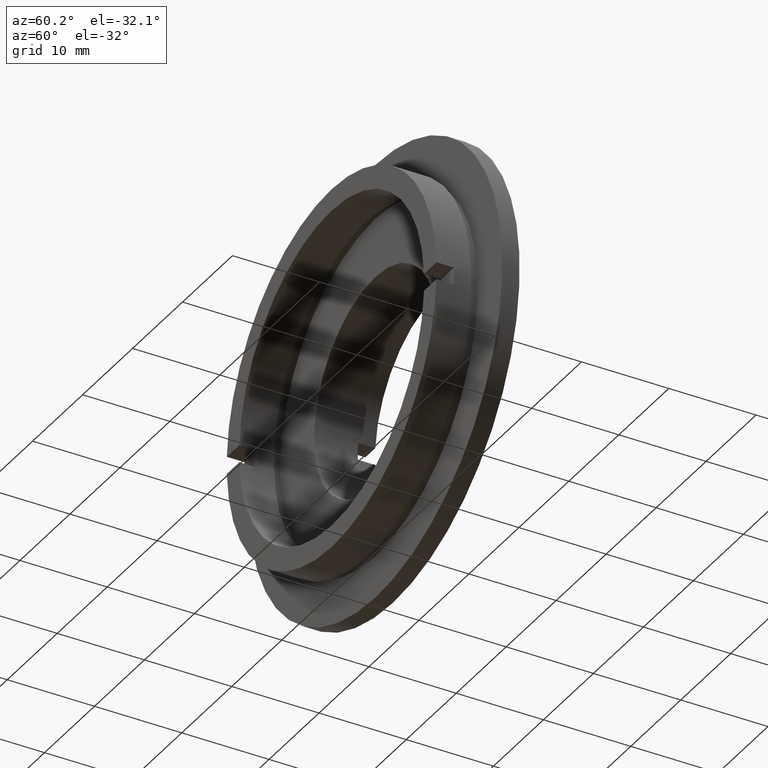
[diagram: clean part render]
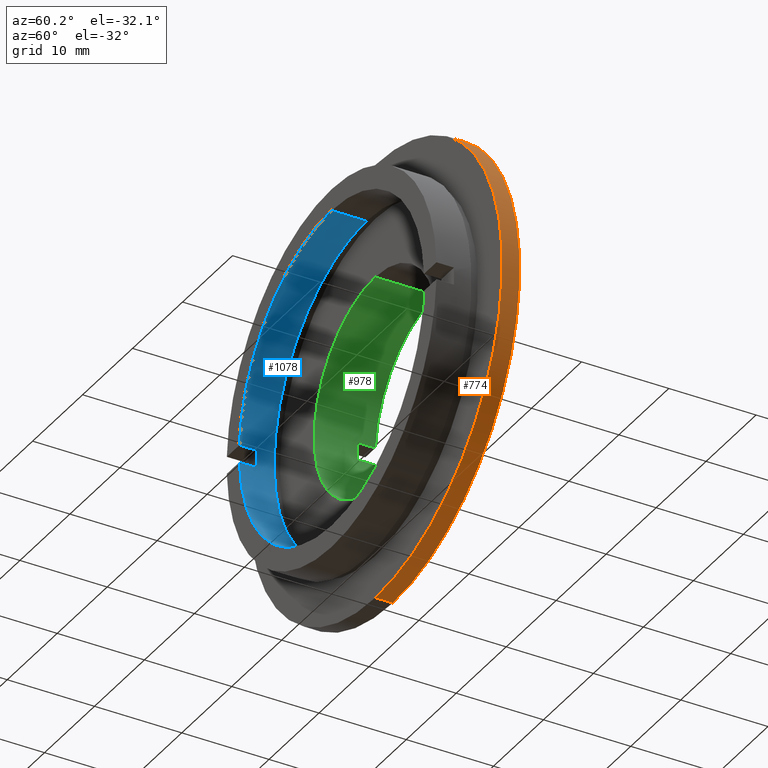
[diagram: same view with three faces highlighted in distinct colors, each labeled with its STEP entity id]
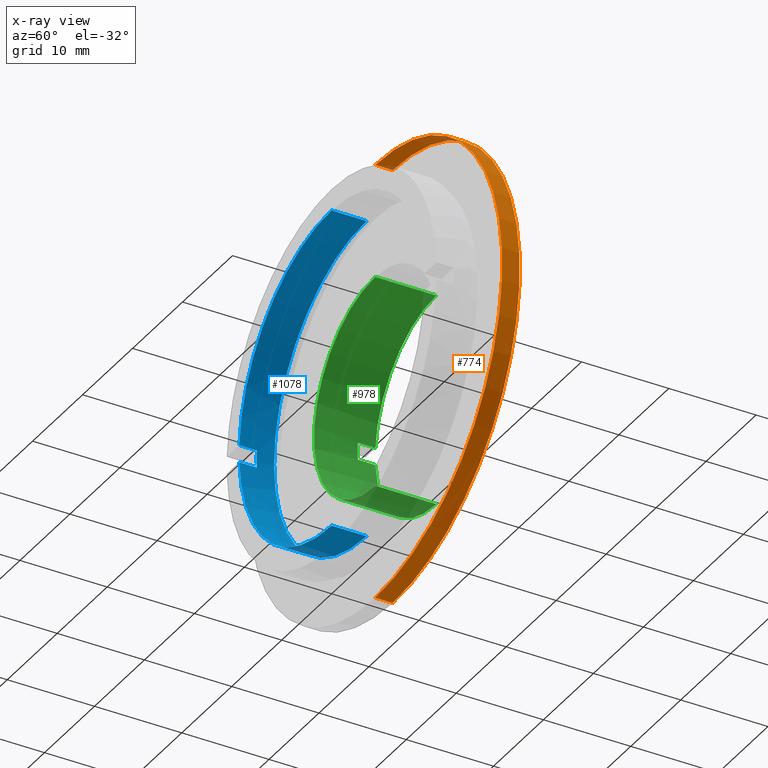
[diagram: x-ray of the same camera — body ghosted, the three highlighted faces saturated]
A machine part, auxiliary view with three faces highlighted in distinct colors.
The next image is the same camera in x-ray (body ghosted, the three faces saturated) — at least one of them is partly hidden behind the body in this view.
Their STEP definitions:

[orange] entity #774 — the highlighted cylindrical surface (partial cylindrical patch) has radius 25.4 mm, axis along (-0, 1, -0).
#33 = CARTESIAN_POINT ( 'NONE',  ( 3.110602869834276500E-015, 6.999999999999999100, -25.39999999999999500 ) ) ;
#59 = DIRECTION ( 'NONE',  ( -0.0000000000000000000, 1.000000000000000000, -0.0000000000000000000 ) ) ;
#72 = CARTESIAN_POINT ( 'NONE',  ( 0.0000000000000000000, 22.67749945107591400, 0.0000000000000000000 ) ) ;
#80 = VERTEX_POINT ( 'NONE', #885 ) ;
#115 = EDGE_LOOP ( 'NONE', ( #354, #1147, #866, #1282 ) ) ;
#341 = CIRCLE ( 'NONE', #729, 25.39999999999999500 ) ;
#349 = EDGE_CURVE ( 'NONE', #80, #836, #1271, .T. ) ;
#354 = ORIENTED_EDGE ( 'NONE', *, *, #1321, .T. ) ;
#373 = CARTESIAN_POINT ( 'NONE',  ( 0.0000000000000000000, 5.000000000000000900, 0.0000000000000000000 ) ) ;
#389 = CARTESIAN_POINT ( 'NONE',  ( 0.0000000000000000000, 5.000000000000000900, 25.39999999999999500 ) ) ;
#436 = CARTESIAN_POINT ( 'NONE',  ( 0.0000000000000000000, 22.67749945107591400, 25.39999999999999500 ) ) ;
#511 = VERTEX_POINT ( 'NONE', #389 ) ;
#571 = DIRECTION ( 'NONE',  ( -0.0000000000000000000, 1.000000000000000000, -0.0000000000000000000 ) ) ;
#588 = VECTOR ( 'NONE', #59, 1000.000000000000000 ) ;
#604 = EDGE_CURVE ( 'NONE', #639, #836, #1247, .T. ) ;
#639 = VERTEX_POINT ( 'NONE', #1163 ) ;
#729 = AXIS2_PLACEMENT_3D ( 'NONE', #373, #880, #1092 ) ;
#741 = FACE_OUTER_BOUND ( 'NONE', #115, .T. ) ;
#752 = CARTESIAN_POINT ( 'NONE',  ( 3.110602869834276500E-015, 22.67749945107591400, -25.39999999999999500 ) ) ;
#768 = CARTESIAN_POINT ( 'NONE',  ( 0.0000000000000000000, 6.999999999999999100, 0.0000000000000000000 ) ) ;
#774 = ADVANCED_FACE ( 'NONE', ( #741 ), #1198, .T. ) ;
#836 = VERTEX_POINT ( 'NONE', #33 ) ;
#866 = ORIENTED_EDGE ( 'NONE', *, *, #604, .F. ) ;
#880 = DIRECTION ( 'NONE',  ( -0.0000000000000000000, 1.000000000000000000, -0.0000000000000000000 ) ) ;
#885 = CARTESIAN_POINT ( 'NONE',  ( 3.110602869834276500E-015, 5.000000000000000900, -25.39999999999999500 ) ) ;
#914 = EDGE_CURVE ( 'NONE', #511, #639, #1122, .T. ) ;
#947 = AXIS2_PLACEMENT_3D ( 'NONE', #768, #1179, #1036 ) ;
#984 = VECTOR ( 'NONE', #1204, 1000.000000000000000 ) ;
#1036 = DIRECTION ( 'NONE',  ( 0.0000000000000000000, 0.0000000000000000000, 1.000000000000000000 ) ) ;
#1092 = DIRECTION ( 'NONE',  ( 0.0000000000000000000, 0.0000000000000000000, 1.000000000000000000 ) ) ;
#1122 = LINE ( 'NONE', #436, #588 ) ;
#1127 = AXIS2_PLACEMENT_3D ( 'NONE', #72, #571, #1311 ) ;
#1147 = ORIENTED_EDGE ( 'NONE', *, *, #349, .T. ) ;
#1163 = CARTESIAN_POINT ( 'NONE',  ( 0.0000000000000000000, 6.999999999999999100, 25.39999999999999500 ) ) ;
#1179 = DIRECTION ( 'NONE',  ( -0.0000000000000000000, 1.000000000000000000, -0.0000000000000000000 ) ) ;
#1198 = CYLINDRICAL_SURFACE ( 'NONE', #1127, 25.39999999999999500 ) ;
#1204 = DIRECTION ( 'NONE',  ( -0.0000000000000000000, 1.000000000000000000, -0.0000000000000000000 ) ) ;
#1247 = CIRCLE ( 'NONE', #947, 25.39999999999999500 ) ;
#1271 = LINE ( 'NONE', #752, #984 ) ;
#1282 = ORIENTED_EDGE ( 'NONE', *, *, #914, .F. ) ;
#1311 = DIRECTION ( 'NONE',  ( 0.0000000000000000000, 0.0000000000000000000, 1.000000000000000000 ) ) ;
#1321 = EDGE_CURVE ( 'NONE', #511, #80, #341, .T. ) ;

[blue] entity #1078 — the highlighted cylindrical surface (partial cylindrical patch) has radius 18.5 mm, axis along (-0, 1, -0).
#1 = DIRECTION ( 'NONE',  ( -0.0000000000000000000, 1.000000000000000000, -0.0000000000000000000 ) ) ;
#4 = DIRECTION ( 'NONE',  ( 0.0000000000000000000, 0.0000000000000000000, 1.000000000000000000 ) ) ;
#40 = AXIS2_PLACEMENT_3D ( 'NONE', #1236, #685, #4 ) ;
#88 = CIRCLE ( 'NONE', #1313, 18.49999999999999600 ) ;
#91 = CARTESIAN_POINT ( 'NONE',  ( -18.47295320191116000, 1.999999999999998200, 1.000000000000000200 ) ) ;
#98 = VECTOR ( 'NONE', #842, 1000.000000000000000 ) ;
#133 = ORIENTED_EDGE ( 'NONE', *, *, #300, .F. ) ;
#137 = CARTESIAN_POINT ( 'NONE',  ( 0.0000000000000000000, 22.67749945107591400, 0.0000000000000000000 ) ) ;
#151 = AXIS2_PLACEMENT_3D ( 'NONE', #137, #894, #248 ) ;
#171 = CARTESIAN_POINT ( 'NONE',  ( -18.47295320191115700, 2.000000000000000000, -0.9999999999999995600 ) ) ;
#240 = EDGE_CURVE ( 'NONE', #449, #440, #268, .T. ) ;
#248 = DIRECTION ( 'NONE',  ( 0.0000000000000000000, 0.0000000000000000000, 1.000000000000000000 ) ) ;
#268 = CIRCLE ( 'NONE', #295, 18.49999999999999600 ) ;
#295 = AXIS2_PLACEMENT_3D ( 'NONE', #615, #1, #524 ) ;
#300 = EDGE_CURVE ( 'NONE', #565, #464, #1098, .T. ) ;
#312 = VECTOR ( 'NONE', #498, 1000.000000000000000 ) ;
#322 = VERTEX_POINT ( 'NONE', #171 ) ;
#329 = CARTESIAN_POINT ( 'NONE',  ( 2.265596578422603000E-015, 0.0000000000000000000, -18.49999999999999600 ) ) ;
#333 = LINE ( 'NONE', #721, #502 ) ;
#335 = DIRECTION ( 'NONE',  ( 0.0000000000000000000, -1.000000000000000000, 0.0000000000000000000 ) ) ;
#363 = CARTESIAN_POINT ( 'NONE',  ( 0.0000000000000000000, 22.67749945107591400, 18.49999999999999600 ) ) ;
#440 = VERTEX_POINT ( 'NONE', #578 ) ;
#446 = VERTEX_POINT ( 'NONE', #1132 ) ;
#447 = DIRECTION ( 'NONE',  ( -0.0000000000000000000, 1.000000000000000000, -0.0000000000000000000 ) ) ;
#449 = VERTEX_POINT ( 'NONE', #329 ) ;
#464 = VERTEX_POINT ( 'NONE', #860 ) ;
#493 = EDGE_CURVE ( 'NONE', #322, #565, #88, .T. ) ;
#498 = DIRECTION ( 'NONE',  ( -0.0000000000000000000, 1.000000000000000000, -0.0000000000000000000 ) ) ;
#502 = VECTOR ( 'NONE', #535, 1000.000000000000000 ) ;
#524 = DIRECTION ( 'NONE',  ( 0.0000000000000000000, 0.0000000000000000000, 1.000000000000000000 ) ) ;
#535 = DIRECTION ( 'NONE',  ( -0.0000000000000000000, 1.000000000000000000, -0.0000000000000000000 ) ) ;
#550 = VECTOR ( 'NONE', #335, 1000.000000000000000 ) ;
#565 = VERTEX_POINT ( 'NONE', #91 ) ;
#578 = CARTESIAN_POINT ( 'NONE',  ( -18.47295320191116000, 0.0000000000000000000, -0.9999999999999945600 ) ) ;
#615 = CARTESIAN_POINT ( 'NONE',  ( 0.0000000000000000000, 0.0000000000000000000, 0.0000000000000000000 ) ) ;
#632 = EDGE_CURVE ( 'NONE', #449, #1284, #854, .T. ) ;
#651 = ORIENTED_EDGE ( 'NONE', *, *, #240, .F. ) ;
#655 = FACE_OUTER_BOUND ( 'NONE', #1100, .T. ) ;
#672 = CARTESIAN_POINT ( 'NONE',  ( 0.0000000000000000000, 4.000000000000000000, 0.0000000000000000000 ) ) ;
#685 = DIRECTION ( 'NONE',  ( -0.0000000000000000000, 1.000000000000000000, -0.0000000000000000000 ) ) ;
#719 = VERTEX_POINT ( 'NONE', #991 ) ;
#721 = CARTESIAN_POINT ( 'NONE',  ( -18.47295320191115700, 22.67749945107591400, -0.9999999999999943400 ) ) ;
#747 = EDGE_CURVE ( 'NONE', #440, #322, #333, .T. ) ;
#750 = CARTESIAN_POINT ( 'NONE',  ( 2.265596578422603000E-015, 4.000000000000000000, -18.49999999999999600 ) ) ;
#758 = CYLINDRICAL_SURFACE ( 'NONE', #151, 18.49999999999999600 ) ;
#781 = ORIENTED_EDGE ( 'NONE', *, *, #1186, .F. ) ;
#790 = ORIENTED_EDGE ( 'NONE', *, *, #861, .T. ) ;
#791 = ORIENTED_EDGE ( 'NONE', *, *, #493, .F. ) ;
#800 = DIRECTION ( 'NONE',  ( 0.0000000000000000000, 0.0000000000000000000, 1.000000000000000000 ) ) ;
#840 = DIRECTION ( 'NONE',  ( 0.0000000000000000000, 1.000000000000000000, 0.0000000000000000000 ) ) ;
#842 = DIRECTION ( 'NONE',  ( -0.0000000000000000000, 1.000000000000000000, -0.0000000000000000000 ) ) ;
#854 = LINE ( 'NONE', #985, #312 ) ;
#860 = CARTESIAN_POINT ( 'NONE',  ( -18.47295320191116000, 0.0000000000000000000, 1.000000000000003800 ) ) ;
#861 = EDGE_CURVE ( 'NONE', #1284, #719, #1233, .T. ) ;
#894 = DIRECTION ( 'NONE',  ( -0.0000000000000000000, 1.000000000000000000, -0.0000000000000000000 ) ) ;
#906 = LINE ( 'NONE', #363, #98 ) ;
#937 = DIRECTION ( 'NONE',  ( 0.0000000000000000000, 0.0000000000000000000, 1.000000000000000000 ) ) ;
#948 = AXIS2_PLACEMENT_3D ( 'NONE', #672, #447, #937 ) ;
#955 = ORIENTED_EDGE ( 'NONE', *, *, #1288, .F. ) ;
#985 = CARTESIAN_POINT ( 'NONE',  ( 2.265596578422603000E-015, 22.67749945107591400, -18.49999999999999600 ) ) ;
#991 = CARTESIAN_POINT ( 'NONE',  ( 0.0000000000000000000, 4.000000000000000000, 18.49999999999999600 ) ) ;
#1078 = ADVANCED_FACE ( 'NONE', ( #655 ), #758, .F. ) ;
#1098 = LINE ( 'NONE', #1216, #550 ) ;
#1100 = EDGE_LOOP ( 'NONE', ( #651, #1192, #790, #955, #781, #133, #791, #1142 ) ) ;
#1132 = CARTESIAN_POINT ( 'NONE',  ( 0.0000000000000000000, 0.0000000000000000000, 18.49999999999999600 ) ) ;
#1142 = ORIENTED_EDGE ( 'NONE', *, *, #747, .F. ) ;
#1170 = CIRCLE ( 'NONE', #40, 18.49999999999999600 ) ;
#1186 = EDGE_CURVE ( 'NONE', #464, #446, #1170, .T. ) ;
#1192 = ORIENTED_EDGE ( 'NONE', *, *, #632, .T. ) ;
#1199 = CARTESIAN_POINT ( 'NONE',  ( 0.0000000000000000000, 1.999999999999998200, 0.0000000000000000000 ) ) ;
#1216 = CARTESIAN_POINT ( 'NONE',  ( -18.47295320191116000, 22.67749945107591400, 1.000000000000003800 ) ) ;
#1233 = CIRCLE ( 'NONE', #948, 18.49999999999999600 ) ;
#1236 = CARTESIAN_POINT ( 'NONE',  ( 0.0000000000000000000, 0.0000000000000000000, 0.0000000000000000000 ) ) ;
#1284 = VERTEX_POINT ( 'NONE', #750 ) ;
#1288 = EDGE_CURVE ( 'NONE', #446, #719, #906, .T. ) ;
#1313 = AXIS2_PLACEMENT_3D ( 'NONE', #1199, #840, #800 ) ;

[green] entity #978 — the highlighted cylindrical surface (partial cylindrical patch) has radius 12.25 mm, axis along (-0, 1, -0).
#3 = DIRECTION ( 'NONE',  ( 0.0000000000000000000, 0.0000000000000000000, 1.000000000000000000 ) ) ;
#15 = VERTEX_POINT ( 'NONE', #872 ) ;
#26 = DIRECTION ( 'NONE',  ( -0.0000000000000000000, -1.000000000000000000, -0.0000000000000000000 ) ) ;
#51 = VECTOR ( 'NONE', #396, 1000.000000000000000 ) ;
#58 = LINE ( 'NONE', #1324, #699 ) ;
#70 = AXIS2_PLACEMENT_3D ( 'NONE', #399, #382, #977 ) ;
#109 = CARTESIAN_POINT ( 'NONE',  ( -12.20911544707478100, 10.00000000000000000, -0.9999999999999974500 ) ) ;
#129 = LINE ( 'NONE', #1112, #1207 ) ;
#141 = AXIS2_PLACEMENT_3D ( 'NONE', #1140, #829, #1124 ) ;
#184 = VERTEX_POINT ( 'NONE', #746 ) ;
#200 = VERTEX_POINT ( 'NONE', #278 ) ;
#202 = EDGE_CURVE ( 'NONE', #748, #1304, #1081, .T. ) ;
#224 = EDGE_CURVE ( 'NONE', #200, #1009, #1125, .T. ) ;
#278 = CARTESIAN_POINT ( 'NONE',  ( -12.20911544707477800, 12.00000000000000000, 1.000000000000001600 ) ) ;
#285 = CARTESIAN_POINT ( 'NONE',  ( 0.0000000000000000000, 12.00000000000000000, 12.24999999999999800 ) ) ;
#289 = ORIENTED_EDGE ( 'NONE', *, *, #484, .F. ) ;
#369 = CARTESIAN_POINT ( 'NONE',  ( 0.0000000000000000000, 10.00000000000000000, 0.0000000000000000000 ) ) ;
#378 = EDGE_LOOP ( 'NONE', ( #697, #540, #686, #289, #1010, #1114, #383, #1287 ) ) ;
#382 = DIRECTION ( 'NONE',  ( -0.0000000000000000000, 1.000000000000000000, -0.0000000000000000000 ) ) ;
#383 = ORIENTED_EDGE ( 'NONE', *, *, #224, .T. ) ;
#396 = DIRECTION ( 'NONE',  ( -0.0000000000000000000, 1.000000000000000000, -0.0000000000000000000 ) ) ;
#399 = CARTESIAN_POINT ( 'NONE',  ( 0.0000000000000000000, 12.00000000000000000, 0.0000000000000000000 ) ) ;
#423 = EDGE_CURVE ( 'NONE', #184, #1009, #562, .T. ) ;
#427 = VERTEX_POINT ( 'NONE', #109 ) ;
#433 = DIRECTION ( 'NONE',  ( -0.0000000000000000000, 1.000000000000000000, -0.0000000000000000000 ) ) ;
#465 = CARTESIAN_POINT ( 'NONE',  ( -12.20911544707477800, 12.00000000000000000, -0.9999999999999978900 ) ) ;
#484 = EDGE_CURVE ( 'NONE', #427, #1304, #859, .T. ) ;
#518 = DIRECTION ( 'NONE',  ( -0.0000000000000000000, 1.000000000000000000, -0.0000000000000000000 ) ) ;
#540 = ORIENTED_EDGE ( 'NONE', *, *, #1137, .T. ) ;
#562 = LINE ( 'NONE', #627, #968 ) ;
#625 = DIRECTION ( 'NONE',  ( 0.0000000000000000000, 0.0000000000000000000, -1.000000000000000000 ) ) ;
#627 = CARTESIAN_POINT ( 'NONE',  ( 0.0000000000000000000, 22.67749945107591400, 12.25000000000000000 ) ) ;
#647 = AXIS2_PLACEMENT_3D ( 'NONE', #649, #736, #754 ) ;
#649 = CARTESIAN_POINT ( 'NONE',  ( 0.0000000000000000000, 22.67749945107591400, 0.0000000000000000000 ) ) ;
#686 = ORIENTED_EDGE ( 'NONE', *, *, #202, .T. ) ;
#697 = ORIENTED_EDGE ( 'NONE', *, *, #1166, .F. ) ;
#699 = VECTOR ( 'NONE', #828, 1000.000000000000000 ) ;
#736 = DIRECTION ( 'NONE',  ( -0.0000000000000000000, 1.000000000000000000, -0.0000000000000000000 ) ) ;
#746 = CARTESIAN_POINT ( 'NONE',  ( 0.0000000000000000000, 5.000000000000000900, 12.25000000000000000 ) ) ;
#748 = VERTEX_POINT ( 'NONE', #1335 ) ;
#754 = DIRECTION ( 'NONE',  ( 0.0000000000000000000, 0.0000000000000000000, 1.000000000000000000 ) ) ;
#784 = EDGE_CURVE ( 'NONE', #15, #427, #1094, .T. ) ;
#804 = CIRCLE ( 'NONE', #1157, 12.25000000000000000 ) ;
#807 = CARTESIAN_POINT ( 'NONE',  ( 0.0000000000000000000, 5.000000000000000900, 0.0000000000000000000 ) ) ;
#819 = CARTESIAN_POINT ( 'NONE',  ( 1.500192328955507700E-015, 5.000000000000000900, -12.25000000000000000 ) ) ;
#828 = DIRECTION ( 'NONE',  ( 0.0000000000000000000, -1.000000000000000000, 0.0000000000000000000 ) ) ;
#829 = DIRECTION ( 'NONE',  ( -0.0000000000000000000, 1.000000000000000000, -0.0000000000000000000 ) ) ;
#859 = LINE ( 'NONE', #990, #51 ) ;
#872 = CARTESIAN_POINT ( 'NONE',  ( -12.20911544707478100, 10.00000000000000000, 1.000000000000001300 ) ) ;
#904 = VERTEX_POINT ( 'NONE', #819 ) ;
#968 = VECTOR ( 'NONE', #433, 1000.000000000000000 ) ;
#977 = DIRECTION ( 'NONE',  ( 0.0000000000000000000, 0.0000000000000000000, 1.000000000000000000 ) ) ;
#978 = ADVANCED_FACE ( 'NONE', ( #1047 ), #1165, .F. ) ;
#990 = CARTESIAN_POINT ( 'NONE',  ( -12.20911544707478000, 22.67749945107591400, -1.000000000000000000 ) ) ;
#1009 = VERTEX_POINT ( 'NONE', #285 ) ;
#1010 = ORIENTED_EDGE ( 'NONE', *, *, #784, .F. ) ;
#1047 = FACE_OUTER_BOUND ( 'NONE', #378, .T. ) ;
#1061 = AXIS2_PLACEMENT_3D ( 'NONE', #369, #26, #625 ) ;
#1081 = CIRCLE ( 'NONE', #70, 12.24999999999999800 ) ;
#1094 = CIRCLE ( 'NONE', #1061, 12.25000000000000000 ) ;
#1112 = CARTESIAN_POINT ( 'NONE',  ( 1.500192328955507700E-015, 22.67749945107591400, -12.25000000000000000 ) ) ;
#1114 = ORIENTED_EDGE ( 'NONE', *, *, #1123, .F. ) ;
#1123 = EDGE_CURVE ( 'NONE', #200, #15, #58, .T. ) ;
#1124 = DIRECTION ( 'NONE',  ( 0.0000000000000000000, 0.0000000000000000000, 1.000000000000000000 ) ) ;
#1125 = CIRCLE ( 'NONE', #141, 12.24999999999999800 ) ;
#1137 = EDGE_CURVE ( 'NONE', #904, #748, #129, .T. ) ;
#1140 = CARTESIAN_POINT ( 'NONE',  ( 0.0000000000000000000, 12.00000000000000000, 0.0000000000000000000 ) ) ;
#1157 = AXIS2_PLACEMENT_3D ( 'NONE', #807, #518, #3 ) ;
#1165 = CYLINDRICAL_SURFACE ( 'NONE', #647, 12.25000000000000000 ) ;
#1166 = EDGE_CURVE ( 'NONE', #904, #184, #804, .T. ) ;
#1174 = DIRECTION ( 'NONE',  ( -0.0000000000000000000, 1.000000000000000000, -0.0000000000000000000 ) ) ;
#1207 = VECTOR ( 'NONE', #1174, 1000.000000000000000 ) ;
#1287 = ORIENTED_EDGE ( 'NONE', *, *, #423, .F. ) ;
#1304 = VERTEX_POINT ( 'NONE', #465 ) ;
#1324 = CARTESIAN_POINT ( 'NONE',  ( -12.20911544707478100, 22.67749945107591400, 1.000000000000002900 ) ) ;
#1335 = CARTESIAN_POINT ( 'NONE',  ( 1.500192328955507500E-015, 12.00000000000000000, -12.24999999999999800 ) ) ;